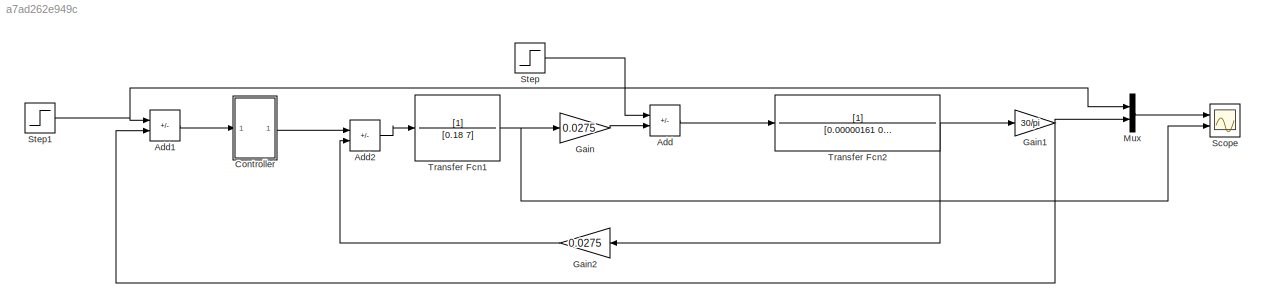
MODEL slx_a7ad262e949c
KIND model
CONFIG AbsTol = auto
CONFIG EnableMultiTasking = off
CONFIG FixedStep = auto
CONFIG MaxStep = auto
CONFIG MinStep = auto
CONFIG RelTol = 1e-3
CONFIG SampleTimeConstraint = Unconstrained
CONFIG SolverName = VariableStepAuto
CONFIG StartTime = 0.0
CONFIG StopTime = 10.0
BLOCK [Sum] Add
  IconShape = rectangular
  Inputs = -+
  Ports = [2, 1]
BLOCK [Sum] Add1
  IconShape = rectangular
  Inputs = +-
  Ports = [2, 1]
BLOCK [Sum] Add2
  IconShape = rectangular
  Inputs = +-
  Ports = [2, 1]
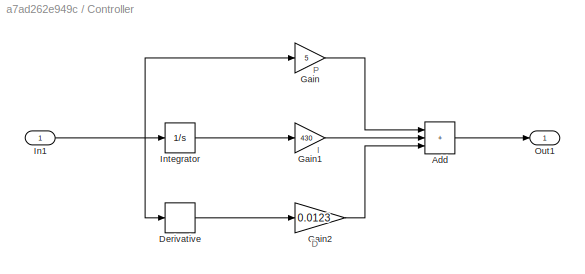
BLOCK [SubSystem] Controller
  Ports = [1, 1]
  RequestExecContextInheritance = off
BLOCK [Sum] Controller/Add
  IconShape = rectangular
  Inputs = +++
  Ports = [3, 1]
BLOCK [Derivative] Controller/Derivative
BLOCK [Gain] Controller/Gain
  Gain = 5
BLOCK [Gain] Controller/Gain1
  Gain = 430
BLOCK [Gain] Controller/Gain2
  Gain = 0.0123
BLOCK [Inport] Controller/In1
BLOCK [Integrator] Controller/Integrator
  Ports = [1, 1]
BLOCK [Outport] Controller/Out1
BLOCK [Gain] Gain
  Gain = 0.0275
BLOCK [Gain] Gain1
  Gain = 30/pi
BLOCK [Gain] Gain2
  Gain = 0.0275
  NameLocation = top
BLOCK [Mux] Mux
  DisplayOption = bar
  Inputs = 2
  Ports = [2, 1]
BLOCK [Scope] Scope
  Floating = off
  NumInputPorts = 2
  Ports = [2]
  ScopeSpecificationString = Simulink.scopes.TimeScopeBlockCfg('CurrentConfiguration', extmgr.ConfigurationSet(extmgr.Configuration('Core','General UI',true),extmgr.Configuration('Core','Source UI',true),extmgr.Configuration('Sources','WiredSimulink',true),extmgr.Configuration('Visuals','Time Domain',true,'SerializedDisplays',{struct('MinYLimReal','-9.84806','MaxYLimReal','27.60765','YLabelReal','','MinYLimMag','0.00000','Max...<+2048ch>
BLOCK [Step] Step
  SampleTime = 0
BLOCK [Step] Step1
  SampleTime = 0
BLOCK [TransferFcn] Transfer Fcn1
  Denominator = [0.18 7]
BLOCK [TransferFcn] Transfer Fcn2
  Denominator = [0.00000161 0.00000604]
ANNOTATION Controller: D
ANNOTATION Controller: I
ANNOTATION Controller: P
LINE Add1:1 -> Controller:1
LINE Add2:1 -> Transfer Fcn1:1
LINE Add:1 -> Transfer Fcn2:1
LINE Controller/Add:1 -> Controller/Out1:1
LINE Controller/Derivative:1 -> Controller/Gain2:1
LINE Controller/Gain1:1 -> Controller/Add:2
LINE Controller/Gain2:1 -> Controller/Add:3
LINE Controller/Gain:1 -> Controller/Add:1
NET Controller/In1:1 -> Controller/Derivative:1, Controller/Gain:1, Controller/Integrator:1
LINE Controller/Integrator:1 -> Controller/Gain1:1
LINE Controller:1 -> Add2:1
NET Gain1:1 -> Add1:2, Mux:2
LINE Gain2:1 -> Add2:2
LINE Gain:1 -> Add:2
LINE Mux:1 -> Scope:1
NET Step1:1 -> Add1:1, Mux:1
LINE Step:1 -> Add:1
NET Transfer Fcn1:1 -> Gain:1, Scope:2
NET Transfer Fcn2:1 -> Gain1:1, Gain2:1
note: NET lines group one-source signal fan-out (src -> all destinations, sorted); 1:1 wires keep LINE
